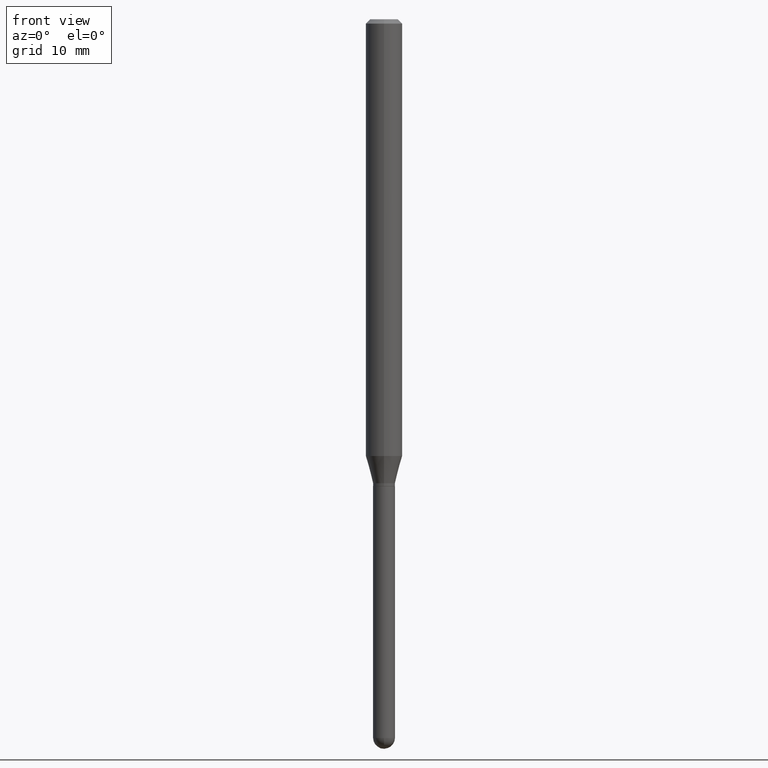
[diagram: clean part render]
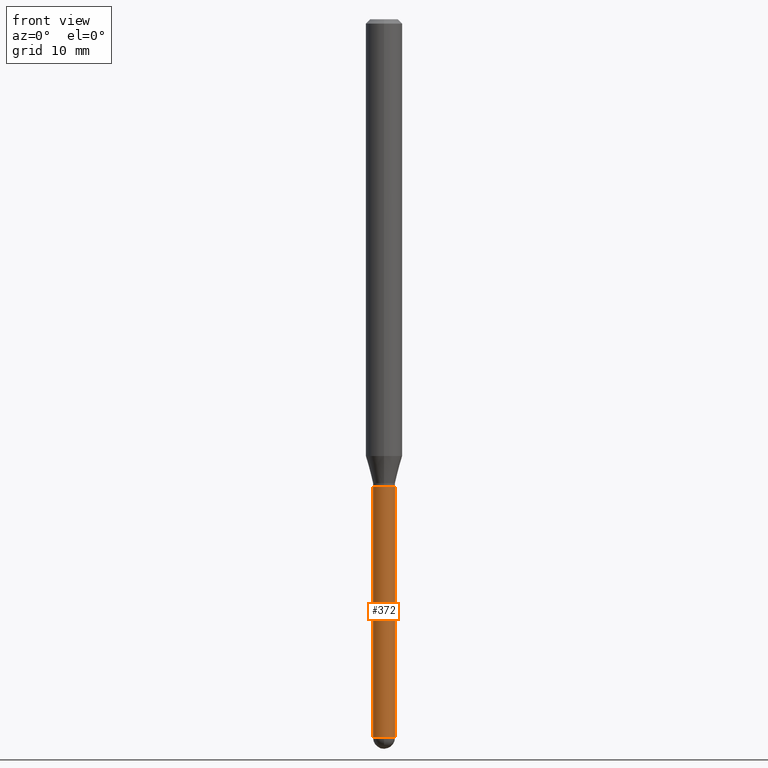
[diagram: same view with one face highlighted and labeled with its STEP entity id]
A machine part, front view. The second image highlights one B-rep face of the part: STEP entity #372.
In plain terms, the highlighted cylindrical surface (edge-blend (fillet) strip) has radius 0.9525 mm, axis along (-0, 0, 1).
Its self-contained STEP definition (entity closure, byte-faithful):
#13 = VECTOR ( 'NONE', #482, 39.37007874015748143 ) ;
#17 = ORIENTED_EDGE ( 'NONE', *, *, #458, .T. ) ;
#30 = CYLINDRICAL_SURFACE ( 'NONE', #441, 0.03749999999999999861 ) ;
#35 = CARTESIAN_POINT ( 'NONE',  ( -0.03749999999999999861, -6.825617943615102854E-15, -2.462500000000000355 ) ) ;
#41 = VECTOR ( 'NONE', #240, 39.37007874015748143 ) ;
#47 = VERTEX_POINT ( 'NONE', #312 ) ;
#111 = DIRECTION ( 'NONE',  ( 1.000000000000000000, -6.982962677686266711E-15, 4.876176775795935793E-29 ) ) ;
#116 = DIRECTION ( 'NONE',  ( -2.445468806185136597E-29, 3.491481338843145583E-15, 1.000000000000000000 ) ) ;
#120 = AXIS2_PLACEMENT_3D ( 'NONE', #292, #460, #253 ) ;
#135 = EDGE_CURVE ( 'NONE', #47, #266, #226, .T. ) ;
#142 = VERTEX_POINT ( 'NONE', #204 ) ;
#156 = EDGE_CURVE ( 'NONE', #387, #47, #486, .T. ) ;
#173 = DIRECTION ( 'NONE',  ( -2.445468806185136597E-29, 3.491481338843145583E-15, 1.000000000000000000 ) ) ;
#177 = AXIS2_PLACEMENT_3D ( 'NONE', #390, #271, #509 ) ;
#187 = CARTESIAN_POINT ( 'NONE',  ( 0.03749999999999999861, -2.618611004132350016E-16, 1.828566290923475922E-30 ) ) ;
#188 = ORIENTED_EDGE ( 'NONE', *, *, #511, .T. ) ;
#191 = CIRCLE ( 'NONE', #120, 0.03749999999999999861 ) ;
#204 = CARTESIAN_POINT ( 'NONE',  ( 0.03749999999999999861, -7.353932569938374479E-15, -2.462500000000000355 ) ) ;
#226 = CIRCLE ( 'NONE', #476, 0.03749999999999999861 ) ;
#228 = CIRCLE ( 'NONE', #177, 0.03749999999999999861 ) ;
#231 = LINE ( 'NONE', #187, #13 ) ;
#240 = DIRECTION ( 'NONE',  ( -2.445468806185136877E-29, 3.491481338843145188E-15, 1.000000000000000000 ) ) ;
#253 = DIRECTION ( 'NONE',  ( 1.000000000000000000, -6.982962677686242256E-15, 0.000000000000000000 ) ) ;
#264 = ORIENTED_EDGE ( 'NONE', *, *, #398, .T. ) ;
#266 = VERTEX_POINT ( 'NONE', #368 ) ;
#271 = DIRECTION ( 'NONE',  ( -2.445468806185136597E-29, 3.491481338843145583E-15, 1.000000000000000000 ) ) ;
#292 = CARTESIAN_POINT ( 'NONE',  ( 6.021966935230899318E-29, -8.597772796901246653E-15, -2.462500000000000355 ) ) ;
#296 = CARTESIAN_POINT ( 'NONE',  ( -2.664535259099760287E-16, -0.03750000000000841549, -2.462500000000000355 ) ) ;
#302 = EDGE_LOOP ( 'NONE', ( #451, #264, #188, #17, #361 ) ) ;
#312 = CARTESIAN_POINT ( 'NONE',  ( -0.03749999999999999861, -6.825617943615102854E-15, -1.600000000000000089 ) ) ;
#361 = ORIENTED_EDGE ( 'NONE', *, *, #135, .F. ) ;
#368 = CARTESIAN_POINT ( 'NONE',  ( 0.03749999999999999861, -5.848231242562268092E-15, -1.600000000000000089 ) ) ;
#372 = ADVANCED_FACE ( 'NONE', ( #455 ), #30, .T. ) ;
#387 = VERTEX_POINT ( 'NONE', #35 ) ;
#390 = CARTESIAN_POINT ( 'NONE',  ( 6.021966935230899318E-29, -8.597772796901246653E-15, -2.462500000000000355 ) ) ;
#398 = EDGE_CURVE ( 'NONE', #387, #448, #191, .T. ) ;
#401 = DIRECTION ( 'NONE',  ( 1.000000000000000000, -6.982962677686268288E-15, 0.000000000000000000 ) ) ;
#409 = CARTESIAN_POINT ( 'NONE',  ( 3.912750089896218667E-29, -5.586370142149033090E-15, -1.600000000000000089 ) ) ;
#441 = AXIS2_PLACEMENT_3D ( 'NONE', #467, #116, #111 ) ;
#444 = CARTESIAN_POINT ( 'NONE',  ( -0.03749999999999999861, 2.664535259100375598E-16, -1.844600658845589808E-30 ) ) ;
#448 = VERTEX_POINT ( 'NONE', #296 ) ;
#451 = ORIENTED_EDGE ( 'NONE', *, *, #156, .F. ) ;
#455 = FACE_OUTER_BOUND ( 'NONE', #302, .T. ) ;
#458 = EDGE_CURVE ( 'NONE', #142, #266, #231, .T. ) ;
#460 = DIRECTION ( 'NONE',  ( -2.445468806185136597E-29, 3.491481338843145583E-15, 1.000000000000000000 ) ) ;
#467 = CARTESIAN_POINT ( 'NONE',  ( 0.000000000000000000, 0.000000000000000000, 0.000000000000000000 ) ) ;
#476 = AXIS2_PLACEMENT_3D ( 'NONE', #409, #173, #401 ) ;
#482 = DIRECTION ( 'NONE',  ( -2.445468806185136877E-29, 3.491481338843145188E-15, 1.000000000000000000 ) ) ;
#486 = LINE ( 'NONE', #444, #41 ) ;
#509 = DIRECTION ( 'NONE',  ( 1.000000000000000000, -6.982962677686242256E-15, 0.000000000000000000 ) ) ;
#511 = EDGE_CURVE ( 'NONE', #448, #142, #228, .T. ) ;